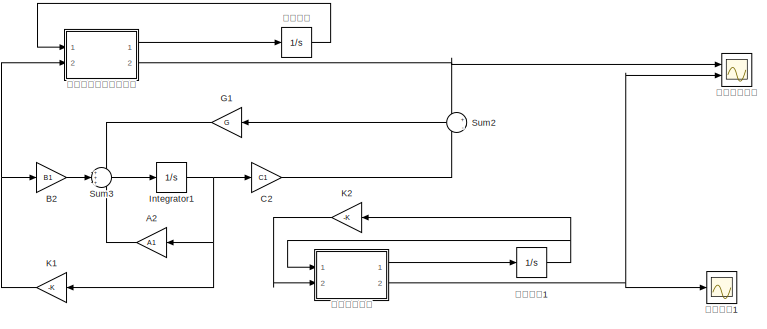
[diagram: root canvas - part 1/2, right side, full height]
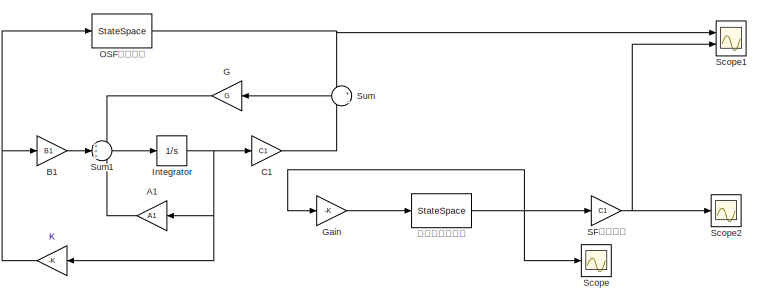
[diagram: root canvas - part 2/2, left side, full height]
MODEL slx_6096a70a6fdc
KIND model
CONFIG AbsTol = auto
CONFIG FixedStep = auto
CONFIG MaxStep = auto
CONFIG MinStep = auto
CONFIG RelTol = 1e-3
CONFIG SampleTimeConstraint = Unconstrained
CONFIG Solver = VariableStepAuto
CONFIG SolverMode = SingleTasking
CONFIG SolverName = VariableStepAuto
CONFIG StartTime = 0.0
CONFIG StopTime = 10.0
BLOCK [Gain] A1
  Gain = A1
  Multiplication = Matrix(K*u)
BLOCK [Gain] A2
  Gain = A1
  Multiplication = Matrix(K*u)
BLOCK [Gain] B1
  Gain = B1
  Multiplication = Matrix(K*u)
BLOCK [Gain] B2
  Gain = B1
  Multiplication = Matrix(K*u)
BLOCK [Gain] C1
  Gain = C1
  Multiplication = Matrix(K*u)
BLOCK [Gain] C2
  Gain = C1
  Multiplication = Matrix(K*u)
BLOCK [Gain] G
  Gain = G
  Multiplication = Matrix(K*u)
BLOCK [Gain] G1
  Gain = G
  Multiplication = Matrix(K*u)
BLOCK [Gain] Gain
  Gain = -K
  Multiplication = Matrix(K*u)
BLOCK [Integrator] Integrator
  InitialCondition = Initobserv
  Ports = [1, 1]
BLOCK [Integrator] Integrator1
  InitialCondition = Initobserv
  Ports = [1, 1]
BLOCK [Gain] K
  Gain = -K
  Multiplication = Matrix(K*u)
BLOCK [Gain] K1
  Gain = -K
  Multiplication = Matrix(K*u)
BLOCK [Gain] K2
  Gain = -K
  Multiplication = Matrix(K*u)
BLOCK [StateSpace] OSF系统输出
  A = A
  B = B
  C = C
  D = D
  Ports = [1, 1]
  X0 = Init
BLOCK [Gain] SF系统输出
  Gain = C1
  Multiplication = Matrix(K*u)
BLOCK [Scope] Scope
  Floating = off
  NumInputPorts = 1
  Ports = [1]
  ScopeSpecificationString = Simulink.scopes.TimeScopeBlockCfg('CurrentConfiguration', extmgr.ConfigurationSet(extmgr.Configuration('Core','General UI',true,'FigureColor',[0.941176470588235 0.941176470588235 0.941176470588235]),extmgr.Configuration('Core','Source UI',true),extmgr.Configuration('Sources','WiredSimulink',true,'DataLoggingVariableName','ScopeData1'),extmgr.Configuration('Visuals','Time Domain',true,'SerializedDi...<+1843ch>
BLOCK [Scope] Scope1
  Floating = off
  NumInputPorts = 2
  Ports = [2]
  ScopeSpecificationString = Simulink.scopes.TimeScopeBlockCfg('CurrentConfiguration', extmgr.ConfigurationSet(extmgr.Configuration('Core','General UI',true,'FigureColor',[0.941176470588235 0.941176470588235 0.941176470588235]),extmgr.Configuration('Core','Source UI',true),extmgr.Configuration('Sources','WiredSimulink',true),extmgr.Configuration('Visuals','Time Domain',true,'SerializedDisplays',{struct('MinYLimReal','-0.16913...<+1783ch>
BLOCK [Scope] Scope2
  Floating = off
  NumInputPorts = 1
  Ports = [1]
  ScopeSpecificationString = Simulink.scopes.TimeScopeBlockCfg('CurrentConfiguration', extmgr.ConfigurationSet(extmgr.Configuration('Core','General UI',true,'FigureColor',[0.941176470588235 0.941176470588235 0.941176470588235]),extmgr.Configuration('Core','Source UI',true),extmgr.Configuration('Sources','WiredSimulink',true,'DataLoggingVariableName','ScopeData2'),extmgr.Configuration('Visuals','Time Domain',true,'SerializedDi...<+1803ch>
BLOCK [Sum] Sum
  Inputs = +|-
  Ports = [2, 1]
BLOCK [Sum] Sum1
  Inputs = +++
  Ports = [3, 1]
BLOCK [Sum] Sum2
  Inputs = +|-
  Ports = [2, 1]
BLOCK [Sum] Sum3
  Inputs = +++
  Ports = [3, 1]
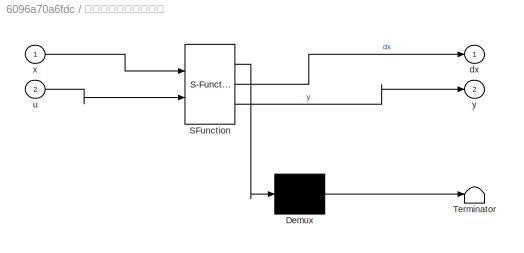
BLOCK [SubSystem] 基于观测器的状态反馈
  ErrorFcn = Stateflow.Translate.translate
  PermitHierarchicalResolution = ExplicitOnly
  Ports = [2, 2]
  RequestExecContextInheritance = off
  SFBlockType = MATLAB Function
  TreatAsAtomicUnit = on
BLOCK [Demux] 基于观测器的状态反馈/ Demux 
  Outputs = 1
  Ports = [1, 1]
BLOCK [S-Function] 基于观测器的状态反馈/ SFunction 
  EnableBusSupport = on
  FunctionName = sf_sfun
  PortCounts = [2 3]
  Ports = [2, 3]
  SFunctionDeploymentMode = off
  Tag = Stateflow S-Function Daolibai_design_OSFtu 1
BLOCK [Terminator] 基于观测器的状态反馈/ Terminator 
BLOCK [Outport] 基于观测器的状态反馈/dx
BLOCK [Inport] 基于观测器的状态反馈/u
  Port = 2
BLOCK [Inport] 基于观测器的状态反馈/x
BLOCK [Outport] 基于观测器的状态反馈/y
  Port = 2
BLOCK [Integrator] 状态变量
  InitialCondition = Init
  Ports = [1, 1]
BLOCK [Integrator] 状态变量1
  InitialCondition = Init
  Ports = [1, 1]
BLOCK [StateSpace] 状态变量（线）
  A = A
  B = B
  C = eye(4)
  D = [0;0;0;0]
  Ports = [1, 1]
  X0 = Init
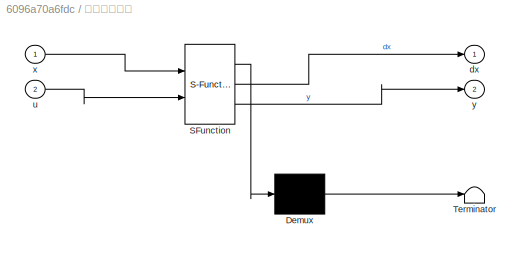
BLOCK [SubSystem] 直接状态反馈
  ErrorFcn = Stateflow.Translate.translate
  PermitHierarchicalResolution = ExplicitOnly
  Ports = [2, 2]
  RequestExecContextInheritance = off
  SFBlockType = MATLAB Function
  TreatAsAtomicUnit = on
BLOCK [Demux] 直接状态反馈/ Demux 
  Outputs = 1
  Ports = [1, 1]
BLOCK [S-Function] 直接状态反馈/ SFunction 
  EnableBusSupport = on
  FunctionName = sf_sfun
  PortCounts = [2 3]
  Ports = [2, 3]
  SFunctionDeploymentMode = off
  Tag = Stateflow S-Function Daolibai_design_OSFtu 2
BLOCK [Terminator] 直接状态反馈/ Terminator 
BLOCK [Outport] 直接状态反馈/dx
BLOCK [Inport] 直接状态反馈/u
  Port = 2
BLOCK [Inport] 直接状态反馈/x
BLOCK [Outport] 直接状态反馈/y
  Port = 2
BLOCK [Scope] 输出响应1
  Floating = off
  NumInputPorts = 1
  Ports = [1]
  ScopeSpecificationString = Simulink.scopes.TimeScopeBlockCfg('CurrentConfiguration', extmgr.ConfigurationSet(extmgr.Configuration('Core','General UI',true,'FigureColor',[0.941176470588235 0.941176470588235 0.941176470588235]),extmgr.Configuration('Core','Source UI',true),extmgr.Configuration('Sources','WiredSimulink',true,'DataLoggingVariableName','ScopeData1'),extmgr.Configuration('Visuals','Time Domain',true,'SerializedDi...<+1842ch>
BLOCK [Scope] 输出响应比较
  Floating = off
  NumInputPorts = 2
  Ports = [2]
  ScopeSpecificationString = Simulink.scopes.TimeScopeBlockCfg('CurrentConfiguration', extmgr.ConfigurationSet(extmgr.Configuration('Core','General UI',true,'FigureColor',[0.941176470588235 0.941176470588235 0.941176470588235]),extmgr.Configuration('Core','Source UI',true),extmgr.Configuration('Sources','WiredSimulink',true,'DataLoggingVariableName','ScopeData5'),extmgr.Configuration('Visuals','Time Domain',true,'SerializedDi...<+1841ch>
LINE A1:1 -> Sum1:3
LINE A2:1 -> Sum3:3
LINE B1:1 -> Sum1:2
LINE B2:1 -> Sum3:2
LINE C1:1 -> Sum:2
LINE C2:1 -> Sum2:2
LINE G1:1 -> Sum3:1
LINE G:1 -> Sum1:1
LINE Gain:1 -> 状态变量（线）:1
NET Integrator1:1 -> A2:1, C2:1, K1:1
NET Integrator:1 -> A1:1, C1:1, K:1
NET K1:1 -> B2:1, 基于观测器的状态反馈:2
LINE K2:1 -> 直接状态反馈:2
NET K:1 -> B1:1, OSF系统输出:1
NET OSF系统输出:1 -> Scope1:1, Sum:1
NET SF系统输出:1 -> Scope1:2, Scope2:1
LINE Sum1:1 -> Integrator:1
LINE Sum2:1 -> G1:1
LINE Sum3:1 -> Integrator1:1
LINE Sum:1 -> G:1
LINE 基于观测器的状态反馈:1 -> 状态变量:1
NET 基于观测器的状态反馈:2 -> Sum2:1, 输出响应比较:1
NET 状态变量1:1 -> K2:1, 直接状态反馈:1
LINE 状态变量:1 -> 基于观测器的状态反馈:1
NET 状态变量（线）:1 -> Gain:1, SF系统输出:1, Scope:1
LINE 直接状态反馈:1 -> 状态变量1:1
NET 直接状态反馈:2 -> 输出响应1:1, 输出响应比较:2
note: NET lines group one-source signal fan-out (src -> all destinations, sorted); 1:1 wires keep LINE
CHART 基于观测器的状态反馈 states=1 transitions=1
  STATE_LABEL 'eML_blk_kernel()'
  STATE_LABEL 'SCRIPT:\nfunction [dx,y] = fcn(x,u)\nM = 1;\nm = 0.1;\nl = 0.5;\ng = 9.8;\nx1=x(1);\nx2=x(2);\nx3=x(3);\nx4=x(4);\ndx1 = x2;\ndx2 =(u + m*l*x4*x4*sin(x3) - m*g*sin(x3)*cos(x3))/(M + m - m*cos(x3)*cos(x3));\ndx3 = x4;\ndx4 =(-u*cos(x3) + (M+m)*g*sin(x3) - m*l*x4*x4*sin(x3)*cos(x3))/((M+m)*l - m*l*cos(x3)*cos(x3));\ndx = [dx1;dx2;dx3;dx4];\ny = x1;\n\n\n'
CHART 直接状态反馈 states=1 transitions=1
  STATE_LABEL 'eML_blk_kernel()'
  STATE_LABEL 'SCRIPT:\nfunction [dx,y] = fcn(x,u)\nM = 1;\nm = 0.1;\nl = 0.5;\ng = 9.8;\nx1=x(1);\nx2=x(2);\nx3=x(3);\nx4=x(4);\ndx1 = x2;\ndx2 =(u + m*l*x4*x4*sin(x3) - m*g*sin(x3)*cos(x3))/(M + m - m*cos(x3)*cos(x3));\ndx3 = x4;\ndx4 =(-u*cos(x3) + (M+m)*g*sin(x3) - m*l*x4*x4*sin(x3)*cos(x3))/((M+m)*l - m*l*cos(x3)*cos(x3));\ndx = [dx1;dx2;dx3;dx4];\ny = x1;\n\n\n'
